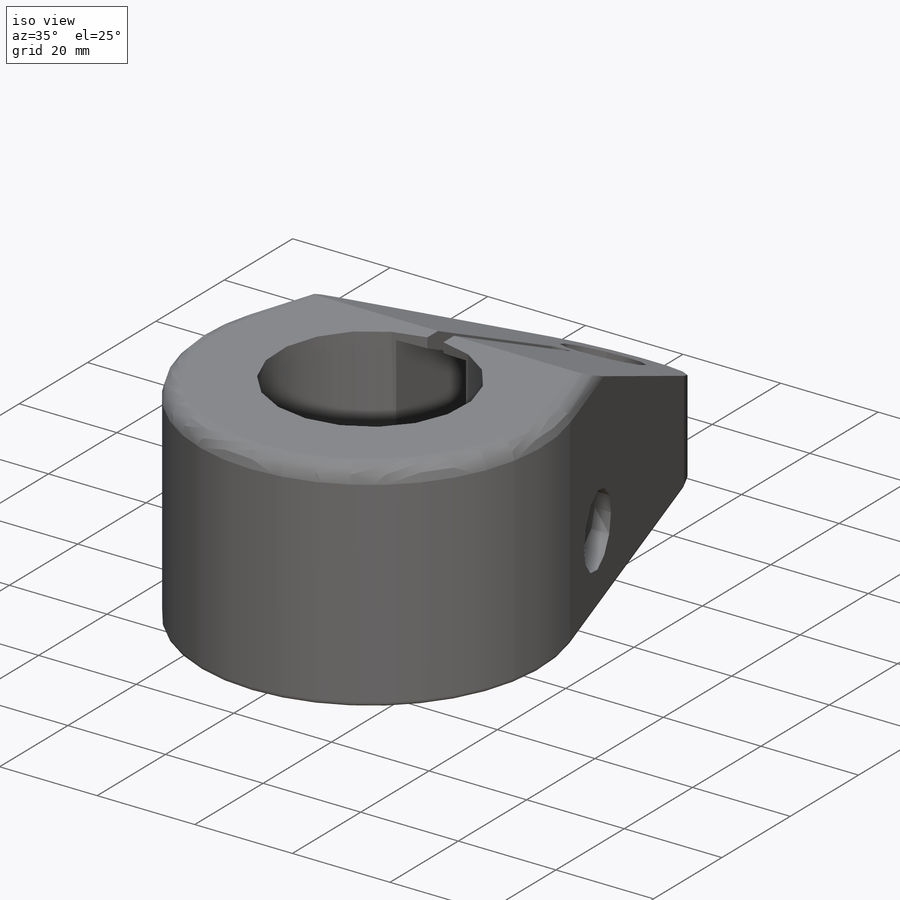
[diagram: iso view]
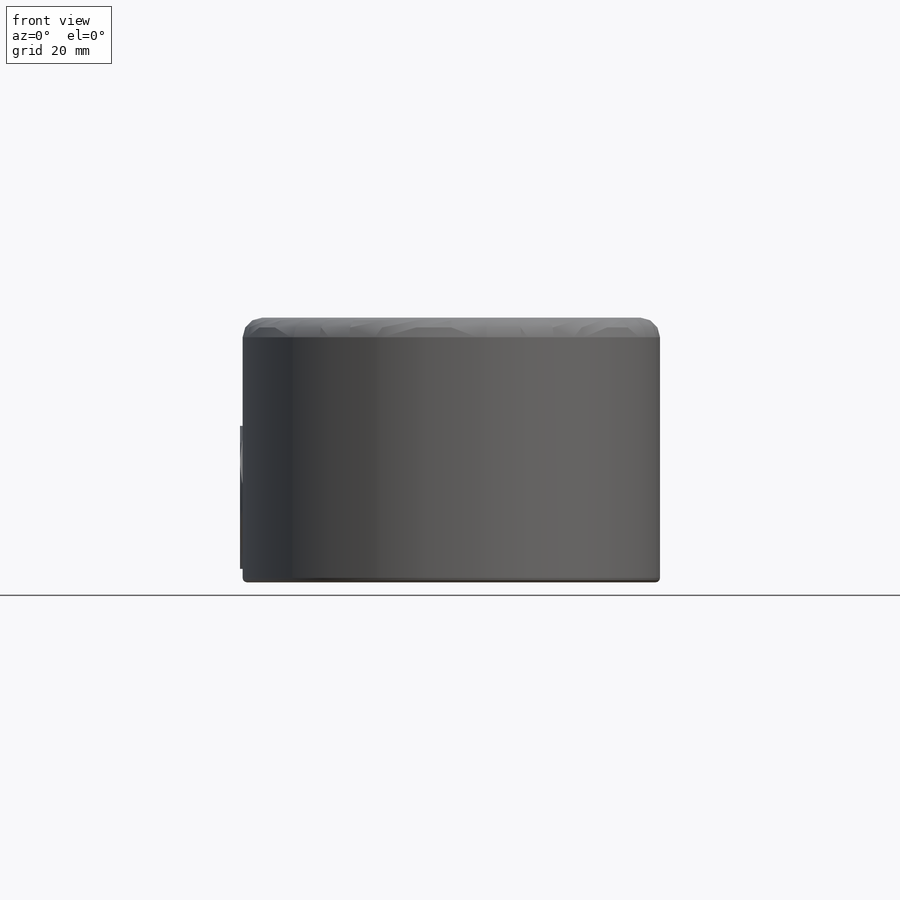
[diagram: front view]
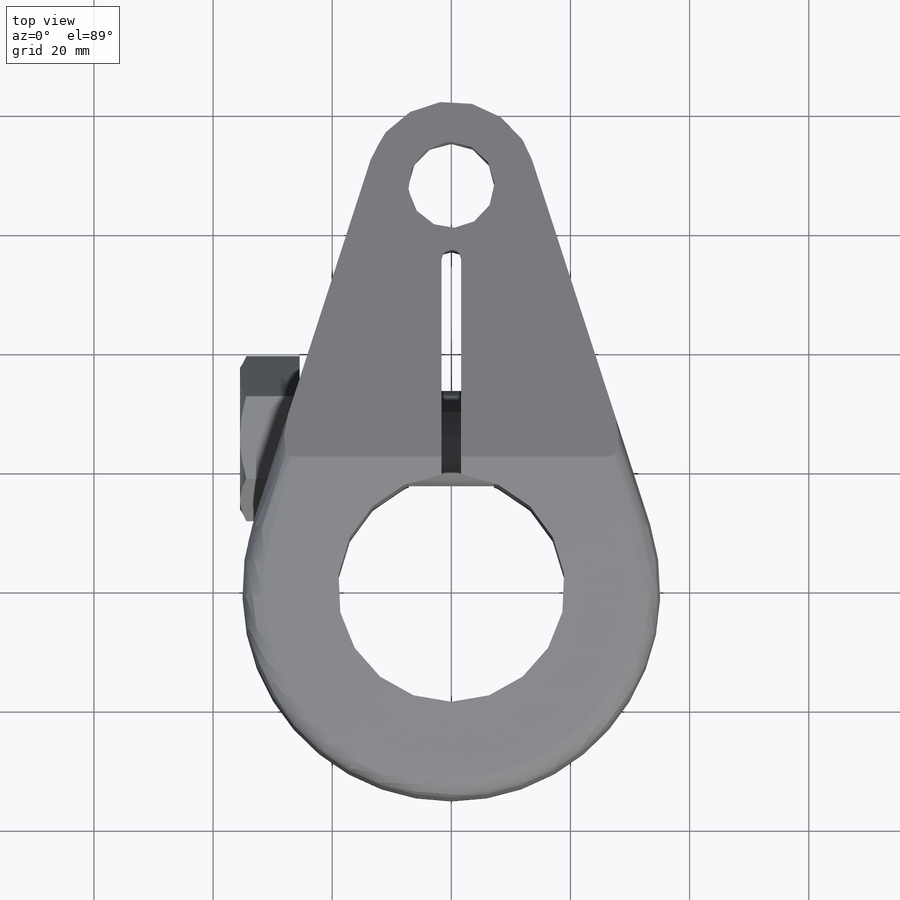
[diagram: top view]
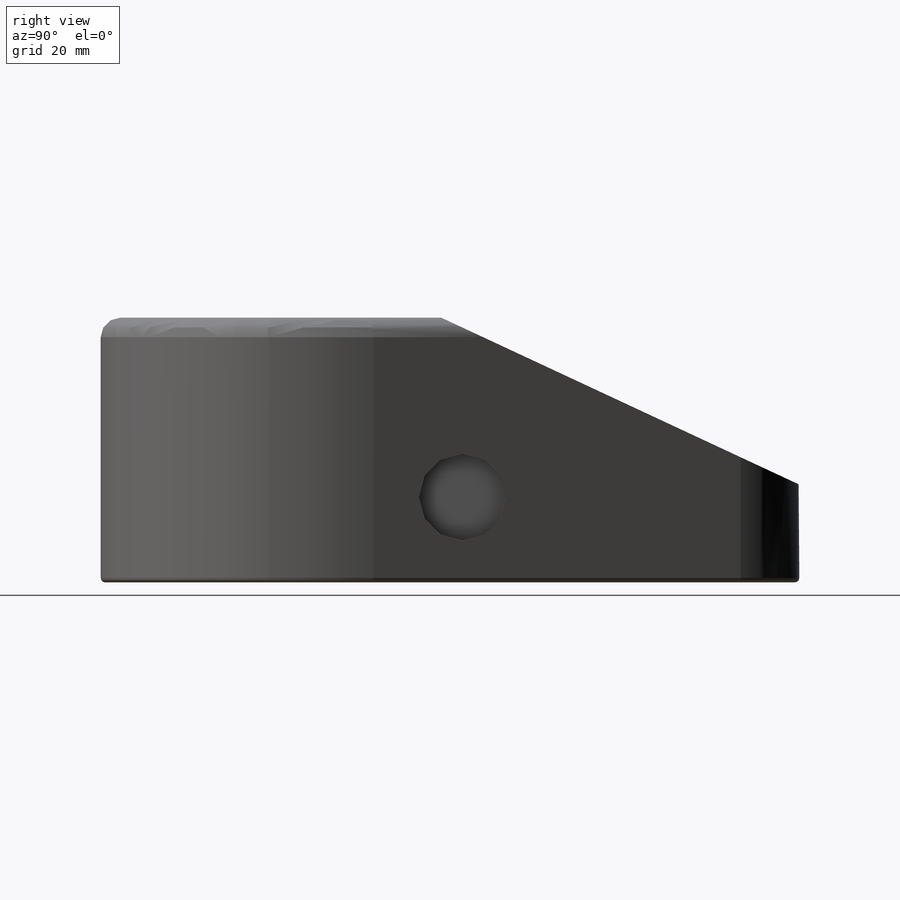
[diagram: right view]
SOLIDWORKS PART (.sldprt)
format: sldprt  version: not decoded by parser v0  size: 307,712 bytes
history: native  units: mm
features: sketch x9, cut_extrude x4, extrude x3, cut_revolve x2, fillet x2, material x1, plane x1 (+13 scaffold rows collapsed)
feature tree (35):
  scaffold x13  (default folders/planes/origin — collapsed)
  material  "Alloy Steel"
  sketch  "Sketch1"  dims[D1=38.1381mm D2=35.052mm D3=14.224mm D4=117.2718mm]
  extrude  "Extrude1"  Depth=44.45mm
  sketch  "Sketch2"  dims[c1.D1=57.15mm c1.D2=~65.855618mm c2.D2=25.0deg]
  cut_extrude  "Cut-Extrude1"  [1 undecoded]
  sketch  "Sketch3"  dims[D1=6.35mm D2=57.15mm D3=14.2748mm]
  cut_extrude  "Cut-Extrude2"  Depth=3.175mm
  sketch  "Sketch4"  dims[D1=3.302mm]
  cut_extrude  "Cut-Extrude3"  [1 undecoded]
  plane  "Plane1"  Offset=25.629mm
  sketch  "Sketch5"  dims[D1=14.2748mm D2=16.256mm D3=34.925mm D4=9.5758mm D5=14.5288mm]
  cut_revolve  "Cut-Revolve1"  Angle=360deg
  sketch  "Sketch6"  dims[D1=24.003mm]
  extrude  "Extrude2"  Depth=10.0076mm
  sketch  "Sketch7"  dims[D1=16.002mm]
  extrude  "Extrude3"  Depth=48.387mm
  sketch  "Sketch8"  dims[c1.D1=~2.933573mm c2.D1=30.0deg c2.D2=3.175mm]
  cut_revolve  "Cut-Revolve2"  Angle=360deg
  sketch  "Sketch9"  dims[D1=14.5288mm D2=68.072mm]
  cut_extrude  "Cut-Extrude4"  [1 undecoded]
  fillet  "Fillet1"  Radius=3.302mm
  fillet  "Fillet2"  Radius=0.762mm
decode coverage: 17 of 20 modeling features carry decoded parameters
note: ~ marks probable driven/reference dimensions
note: 3 parameter values undecoded
summary: no parameter record found for 3 features
note: suppression state not decoded; provenance and decode notes live in map.json
